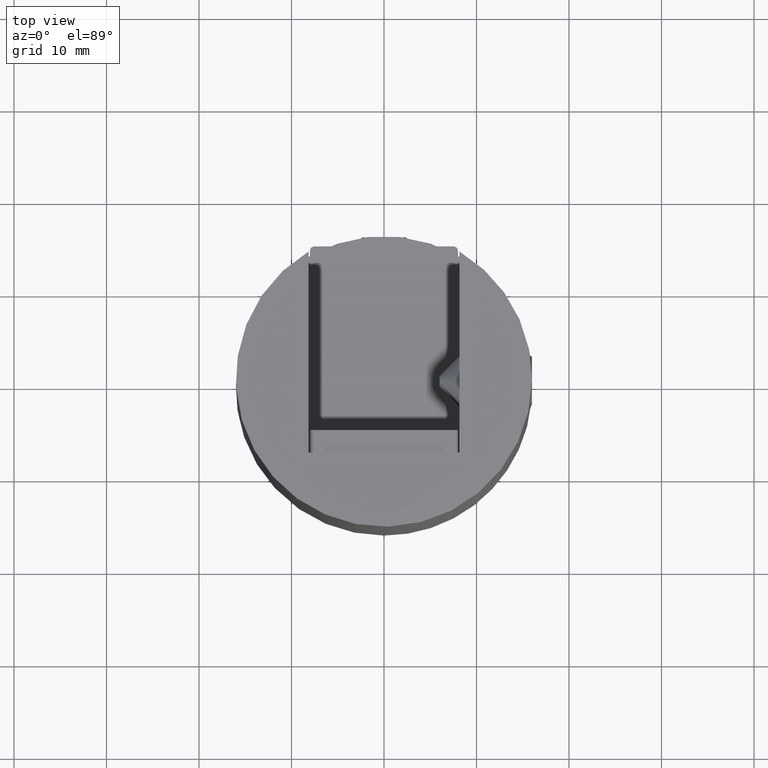
[diagram: clean part render]
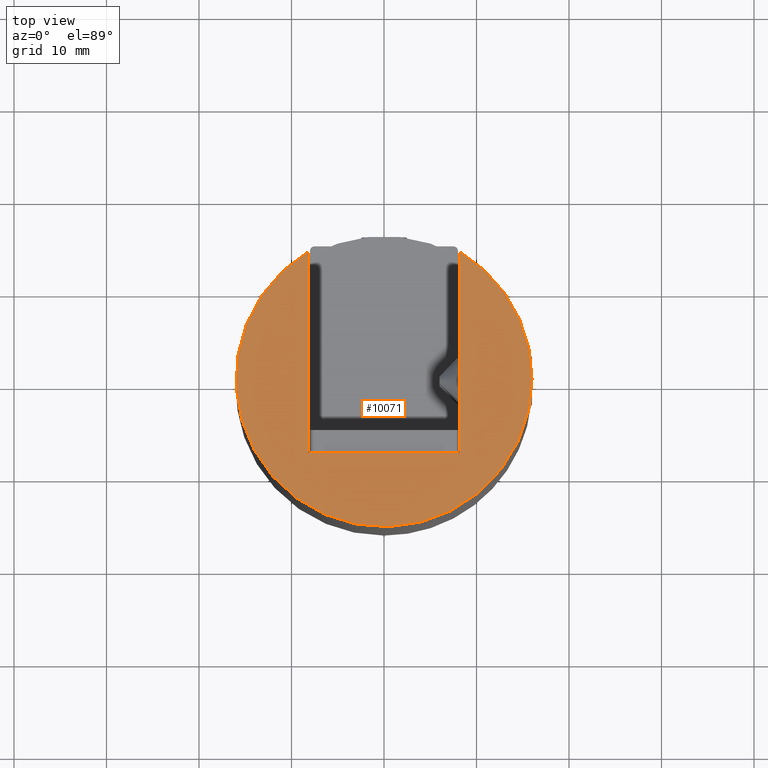
[diagram: same view with one face highlighted and labeled with its STEP entity id]
A machine part, top view. The second image highlights one B-rep face of the part: STEP entity #10071.
In plain terms, the highlighted planar face has unit normal (0, 0, 1).
Its self-contained STEP definition (entity closure, byte-faithful):
#461 = EDGE_LOOP ( 'NONE', ( #9070, #17892, #4279, #8879 ) ) ;
#1601 = VERTEX_POINT ( 'NONE', #12466 ) ;
#2447 = AXIS2_PLACEMENT_3D ( 'NONE', #18665, #10820, #20308 ) ;
#3170 = EDGE_CURVE ( 'NONE', #13230, #7651, #4033, .T. ) ;
#3214 = VECTOR ( 'NONE', #17209, 1000.000000000000000 ) ;
#3452 = LINE ( 'NONE', #16064, #3214 ) ;
#4033 = CIRCLE ( 'NONE', #7921, 16.00000000000000000 ) ;
#4279 = ORIENTED_EDGE ( 'NONE', *, *, #10685, .F. ) ;
#4747 = EDGE_CURVE ( 'NONE', #13230, #1601, #12542, .T. ) ;
#6950 = CARTESIAN_POINT ( 'NONE',  ( -8.150000000000000355, 0.000000000000000000, 0.000000000000000000 ) ) ;
#7651 = VERTEX_POINT ( 'NONE', #19502 ) ;
#7921 = AXIS2_PLACEMENT_3D ( 'NONE', #7981, #17615, #19187 ) ;
#7981 = CARTESIAN_POINT ( 'NONE',  ( 0.000000000000000000, 0.000000000000000000, 0.000000000000000000 ) ) ;
#8655 = DIRECTION ( 'NONE',  ( 0.000000000000000000, -1.000000000000000000, 0.000000000000000000 ) ) ;
#8879 = ORIENTED_EDGE ( 'NONE', *, *, #15571, .F. ) ;
#9070 = ORIENTED_EDGE ( 'NONE', *, *, #4747, .F. ) ;
#10071 = ADVANCED_FACE ( 'NONE', ( #18339 ), #12562, .T. ) ;
#10306 = VECTOR ( 'NONE', #8655, 1000.000000000000000 ) ;
#10685 = EDGE_CURVE ( 'NONE', #14396, #7651, #18093, .T. ) ;
#10820 = DIRECTION ( 'NONE',  ( 0.000000000000000000, 0.000000000000000000, 1.000000000000000000 ) ) ;
#12463 = CARTESIAN_POINT ( 'NONE',  ( 8.150000000000011013, -8.000000000000000000, -1.387778780781445676E-14 ) ) ;
#12466 = CARTESIAN_POINT ( 'NONE',  ( -8.150000000000000355, -8.000000000000000000, 0.000000000000000000 ) ) ;
#12542 = LINE ( 'NONE', #6950, #10306 ) ;
#12562 = PLANE ( 'NONE',  #2447 ) ;
#12920 = VECTOR ( 'NONE', #17824, 1000.000000000000000 ) ;
#13230 = VERTEX_POINT ( 'NONE', #14063 ) ;
#14063 = CARTESIAN_POINT ( 'NONE',  ( -8.150000000000000355, 13.76871453694933578, 0.000000000000000000 ) ) ;
#14396 = VERTEX_POINT ( 'NONE', #12463 ) ;
#14752 = CARTESIAN_POINT ( 'NONE',  ( 8.150000000000011013, 0.000000000000000000, 0.000000000000000000 ) ) ;
#15571 = EDGE_CURVE ( 'NONE', #1601, #14396, #3452, .T. ) ;
#16064 = CARTESIAN_POINT ( 'NONE',  ( 0.000000000000000000, -8.000000000000000000, 0.000000000000000000 ) ) ;
#17209 = DIRECTION ( 'NONE',  ( 1.000000000000000000, 0.000000000000000000, 0.000000000000000000 ) ) ;
#17615 = DIRECTION ( 'NONE',  ( 0.000000000000000000, 0.000000000000000000, 1.000000000000000000 ) ) ;
#17824 = DIRECTION ( 'NONE',  ( -0.000000000000000000, 1.000000000000000000, 0.000000000000000000 ) ) ;
#17892 = ORIENTED_EDGE ( 'NONE', *, *, #3170, .T. ) ;
#18093 = LINE ( 'NONE', #14752, #12920 ) ;
#18339 = FACE_OUTER_BOUND ( 'NONE', #461, .T. ) ;
#18665 = CARTESIAN_POINT ( 'NONE',  ( 0.000000000000000000, 0.000000000000000000, 0.000000000000000000 ) ) ;
#19187 = DIRECTION ( 'NONE',  ( 1.000000000000000000, 0.000000000000000000, 0.000000000000000000 ) ) ;
#19502 = CARTESIAN_POINT ( 'NONE',  ( 8.150000000000011013, 13.76871453694933045, 0.000000000000000000 ) ) ;
#20308 = DIRECTION ( 'NONE',  ( 1.000000000000000000, 0.000000000000000000, -0.000000000000000000 ) ) ;